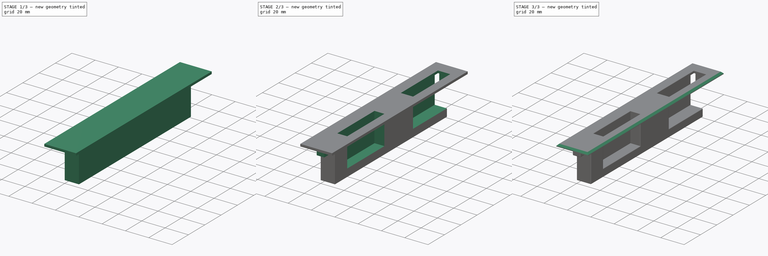
[diagram: build sequence overview — one tinted view per stage of 3, left to right]
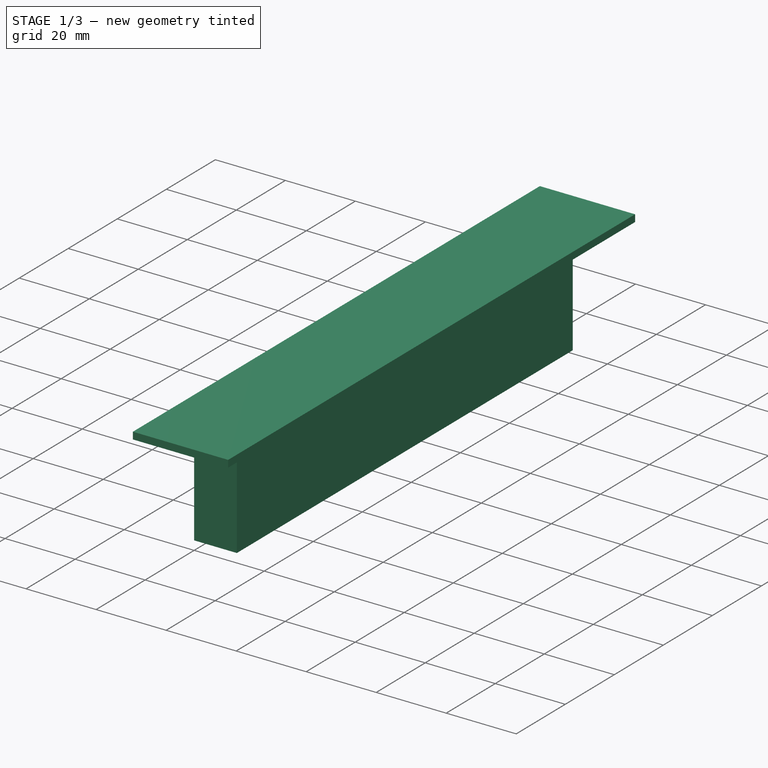
[diagram: stage 1 of 3 — iso view after this stage's code; geometry added in this stage tinted green]
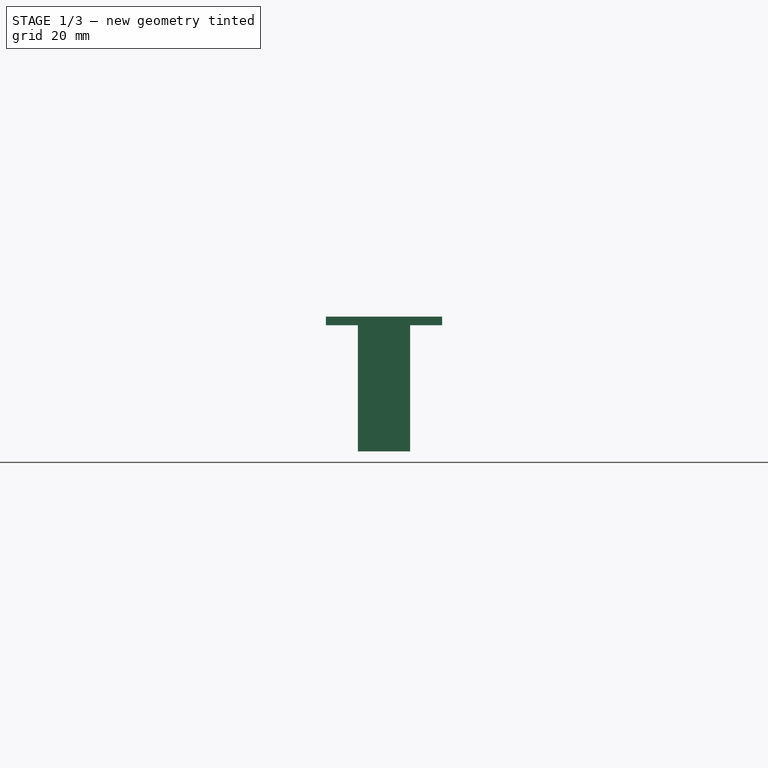
[diagram: stage 1 of 3 — front view after this stage's code; geometry added in this stage tinted green]
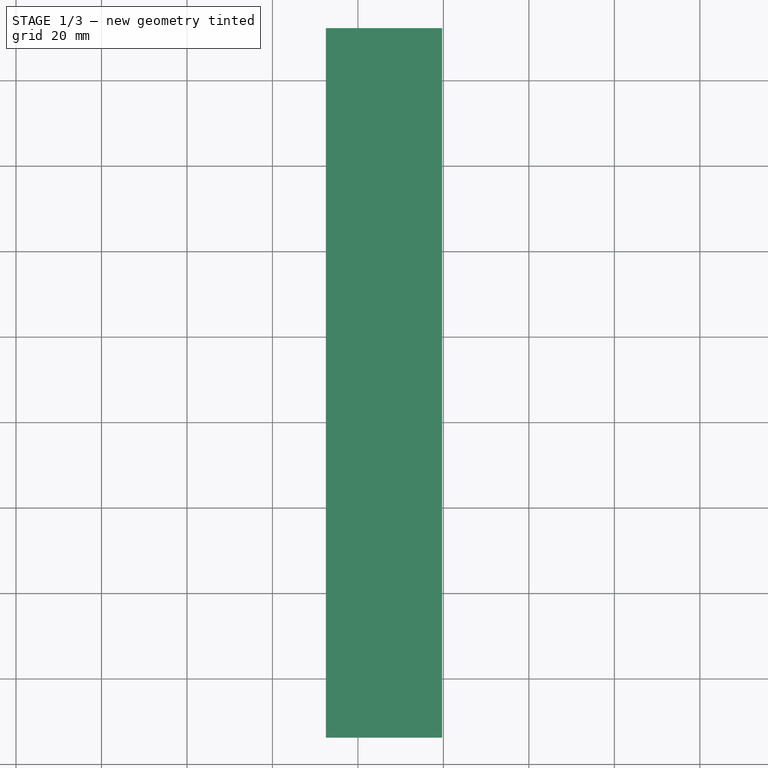
[diagram: stage 1 of 3 — top view after this stage's code; geometry added in this stage tinted green]
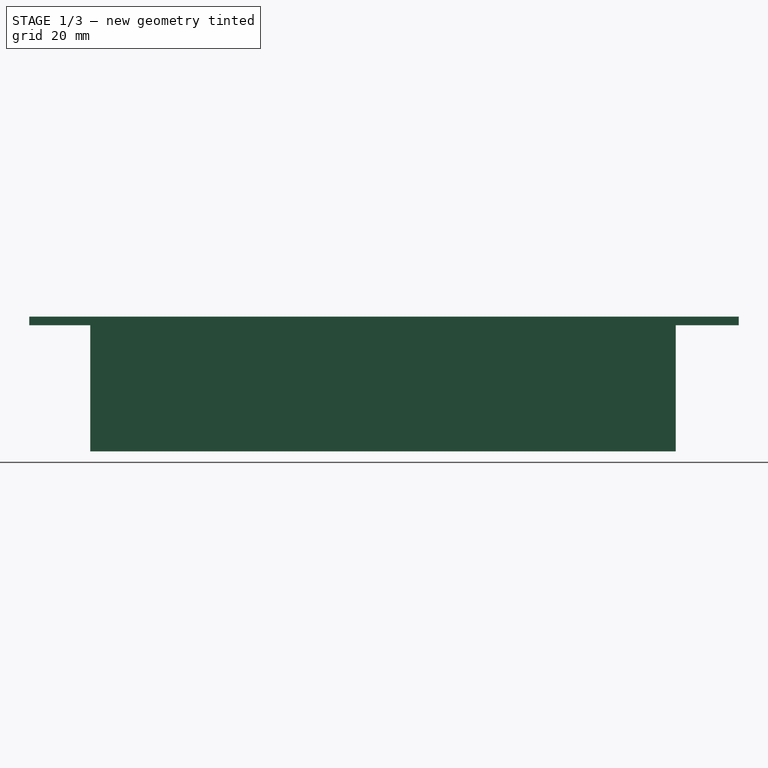
[diagram: stage 1 of 3 — right view after this stage's code; geometry added in this stage tinted green]
FCSTD DOCUMENT  (FreeCAD 1.0R39109 (Git))
Label: awning_door
License: All rights reserved
LicenseURL: https://en.wikipedia.org/wiki/All_rights_reserved
objects: Sketcher::SketchObject×4, PartDesign::Pad×3, Spreadsheet::Sheet×1, PartDesign::Pocket×1, PartDesign::Chamfer×1, PartDesign::Fillet×1, PartDesign::Body×1
note: 27 computed .brp shape members not serialized (recipe doc carries the construction recipe); baked Part::Feature solids carry a one-line shape summary decoded from their .brp

FEATURE [Sketcher::SketchObject] Sketch
  ArcFitTolerance = 0
  AttachmentSupport = -> [XY_Plane]
  FullyConstrained = true
  MakeInternals = false
  MapMode = 5
  expr: Constraints[10] = <<dimensions>>.height
  expr: Constraints[9] = <<dimensions>>.width
  sketch-geometry (4):
    g0: LineSegment StartX=0 StartY=0 StartZ=0 EndX=12.2 EndY=0 EndZ=0
    g1: LineSegment StartX=12.2 StartY=0 StartZ=0 EndX=12.2 EndY=137 EndZ=0
    g2: LineSegment StartX=12.2 StartY=137 StartZ=0 EndX=0 EndY=137 EndZ=0
    g3: LineSegment StartX=0 StartY=137 StartZ=0 EndX=0 EndY=0 EndZ=0
  constraints (11):
    c: Coincident(g0,g1)
    c: Coincident(g1,g2)
    c: Coincident(g2,g3)
    c: Coincident(g3,g0)
    c: Horizontal(g0)
    c: Horizontal(g2)
    c: Vertical(g1)
    c: Vertical(g3)
    c: Coincident(g0,g-1)
    c: DistanceX(g0,g0) = 12.2
    c: DistanceY(g1,g1) = 137
FEATURE [Spreadsheet::Sheet] Spreadsheet  label="dimensions"
  cells = A1='width; B1(width)==12.2 mm; A2='height; B2(height)==137 mm; A3='depth; B3(depth)==30 mm; A4='tolerance; B4(tolerance)==0.5 mm; A5='wall; B5(wall)==1.2 mm; A6='groove; B6(groove)==7 mm
FEATURE [PartDesign::Pad] Pad  label="hole"
  Direction = (0,0,1)
  Length = 29.5
  Length2 = 10
  Profile = -> Sketch
  ReferenceAxis = -> Sketch [N_Axis]
  Suppressed = false
  Type = 0
  expr: Length = <<dimensions>>.depth - <<dimensions>>.tolerance
FEATURE [Sketcher::SketchObject] Sketch001
  ArcFitTolerance = 0
  AttachmentOffset = pos=(0,0,31.5) rot=(0,0,1;0rad)
  AttachmentSupport = -> [XY_Plane]
  FullyConstrained = true
  MakeInternals = false
  MapMode = 5
  Placement = pos=(0,0,31.5) rot=(0,0,1;0rad)
  expr: .AttachmentOffset.Base.z = <<dimensions>>.depth - <<dimensions>>.tolerance + 2 mm
  expr: Constraints[19] = 30 mm + <<dimensions>>.tolerance + 15 mm
  expr: Constraints[20] = 12 mm + <<dimensions>>.tolerance - 2 mm
  expr: Constraints[23] = <<dimensions>>.width
  expr: Constraints[8] = 8 mm + <<dimensions>>.tolerance
  expr: Constraints[9] = 30 mm + <<dimensions>>.tolerance + 15 mm
  sketch-geometry (8):
    g0: LineSegment StartX=3.7 StartY=60.5 StartZ=0 EndX=12.2 EndY=60.5 EndZ=0
    g1: LineSegment StartX=12.2 StartY=60.5 StartZ=0 EndX=12.2 EndY=15 EndZ=0
    g2: LineSegment StartX=12.2 StartY=15 StartZ=0 EndX=3.7 EndY=15 EndZ=0
    g3: LineSegment StartX=3.7 StartY=15 StartZ=0 EndX=3.7 EndY=60.5 EndZ=0
    g4: LineSegment StartX=1.75 StartY=95.5 StartZ=0 EndX=12.25 EndY=95.5 EndZ=0
    g5: LineSegment StartX=12.25 StartY=95.5 StartZ=0 EndX=12.25 EndY=141 EndZ=0
    g6: LineSegment StartX=12.25 StartY=141 StartZ=0 EndX=1.75 EndY=141 EndZ=0
    g7: LineSegment StartX=1.75 StartY=141 StartZ=0 EndX=1.75 EndY=95.5 EndZ=0
  constraints (24):
    c: Coincident(g0,g1)
    c: Coincident(g1,g2)
    c: Coincident(g2,g3)
    c: Coincident(g3,g0)
    c: Horizontal(g0)
    c: Horizontal(g2)
    c: Vertical(g1)
    c: Vertical(g3)
    c: DistanceX(g2,g2) = 8.5
    c: DistanceY(g1,g1) = 45.5
    c: DistanceY(g-1,g2) = 15
    c: Coincident(g4,g5)
    c: Coincident(g5,g6)
    c: Coincident(g6,g7)
    c: Coincident(g7,g4)
    c: Horizontal(g4)
    c: Horizontal(g6)
    c: Vertical(g5)
    c: Vertical(g7)
    c: DistanceY(g5,g5) = 45.5
    c: DistanceX(g4,g4) = 10.5
    c: DistanceY(g0,g4) = 35
    c: DistanceX(g-1,g4) = 1.75
    c: DistanceX(g-1,g1) = 12.2
FEATURE [Sketcher::SketchObject] Sketch002
  ArcFitTolerance = 0
  AttachmentOffset = pos=(0,0,29.5) rot=(0,0,1;0rad)
  AttachmentSupport = -> [XY_Plane]
  FullyConstrained = true
  MakeInternals = false
  MapMode = 5
  Placement = pos=(0,0,29.5) rot=(0,0,1;0rad)
  expr: .AttachmentOffset.Base.z = <<dimensions>>.depth - <<dimensions>>.tolerance
  expr: Constraints[8] = <<dimensions>>.height + 2 * 7.5 mm + 2 * <<dimensions>>.groove
  expr: Constraints[9] = <<dimensions>>.width + 2 * 7.5 mm
  sketch-geometry (4):
    g0: LineSegment StartX=-7.5 StartY=151.73 StartZ=0 EndX=19.7 EndY=151.73 EndZ=0
    g1: LineSegment StartX=19.7 StartY=151.73 StartZ=0 EndX=19.7 EndY=-14.27 EndZ=0
    g2: LineSegment StartX=19.7 StartY=-14.27 StartZ=0 EndX=-7.5 EndY=-14.27 EndZ=0
    g3: LineSegment StartX=-7.5 StartY=-14.27 StartZ=0 EndX=-7.5 EndY=151.73 EndZ=0
  constraints (12):
    c: Coincident(g0,g1)
    c: Coincident(g1,g2)
    c: Coincident(g2,g3)
    c: Coincident(g3,g0)
    c: Horizontal(g0)
    c: Horizontal(g2)
    c: Vertical(g1)
    c: Vertical(g3)
    c: DistanceY(g1,g1) = 166
    c: DistanceX(g2,g2) = 27.2
    c: DistanceX(g2,g-1) = 7.5
    c: DistanceY(g2,g-1) = 14.27
FEATURE [PartDesign::Pad] Pad001  label="plate"
  BaseFeature = -> Pad
  Direction = (0,0,1)
  Length = 2
  Length2 = 10
  Profile = -> Sketch002
  ReferenceAxis = -> Sketch002 [N_Axis]
  Suppressed = false
  Type = 0
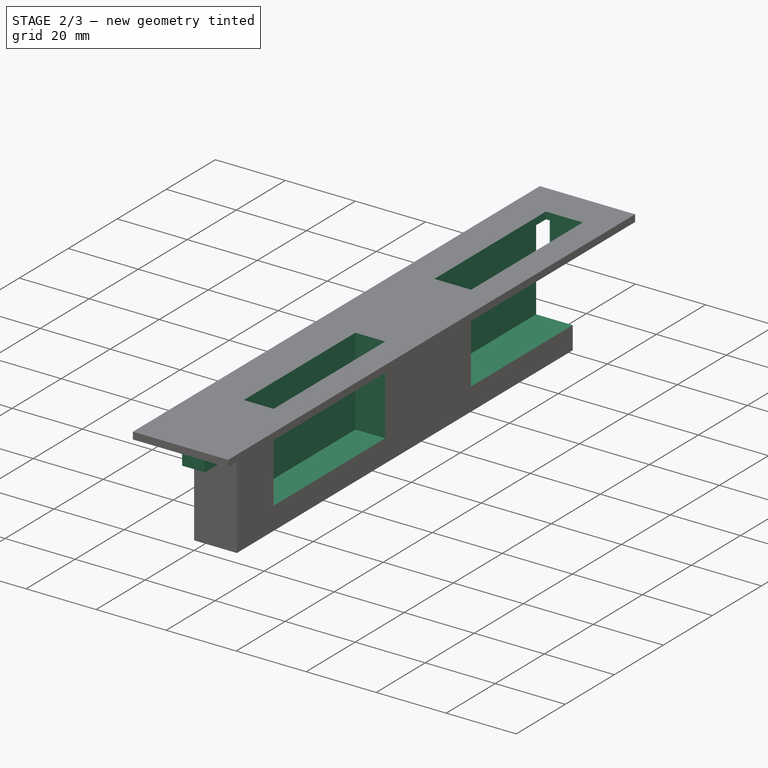
[diagram: stage 2 of 3 — iso view after this stage's code; geometry added in this stage tinted green]
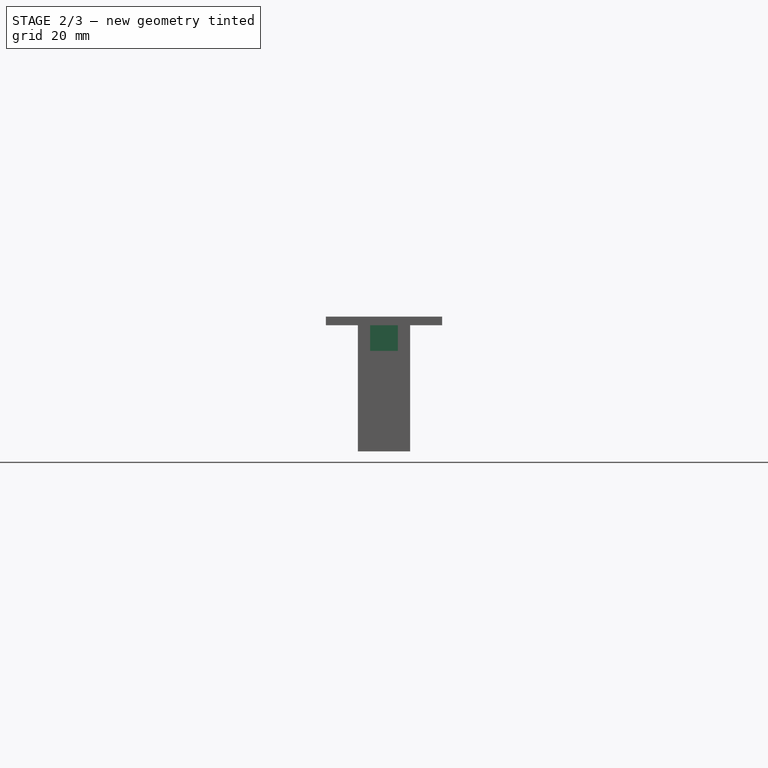
[diagram: stage 2 of 3 — front view after this stage's code; geometry added in this stage tinted green]
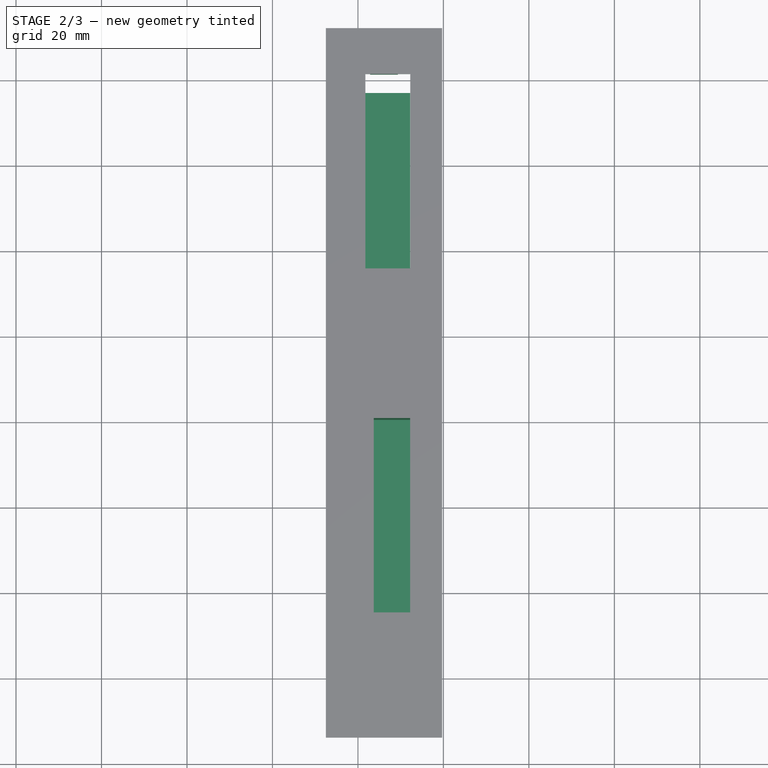
[diagram: stage 2 of 3 — top view after this stage's code; geometry added in this stage tinted green]
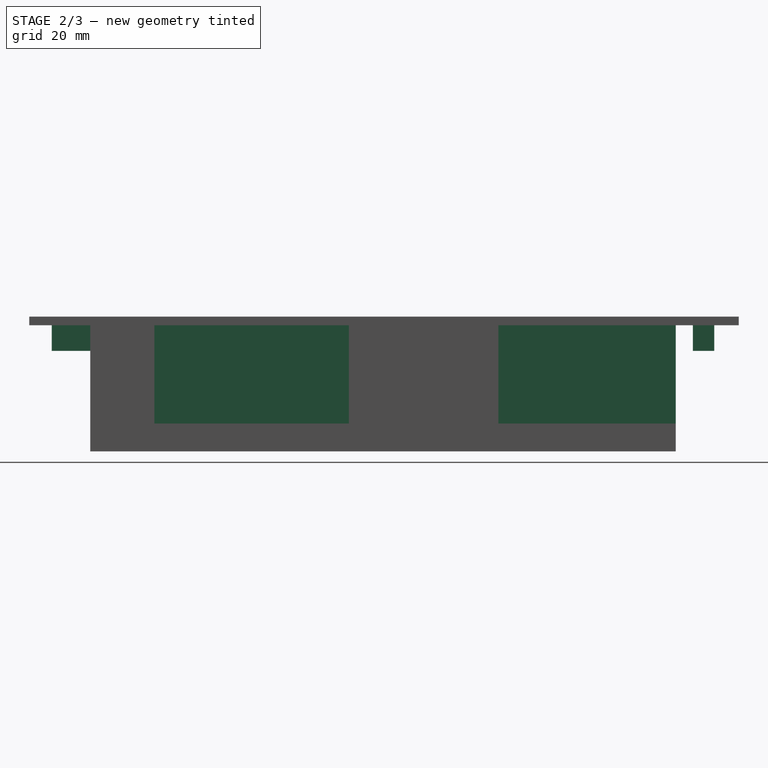
[diagram: stage 2 of 3 — right view after this stage's code; geometry added in this stage tinted green]
FEATURE [Sketcher::SketchObject] Sketch003
  ArcFitTolerance = 0
  AttachmentOffset = pos=(0,0,29.5) rot=(0,0,1;0rad)
  AttachmentSupport = -> [XY_Plane]
  FullyConstrained = true
  MakeInternals = false
  MapMode = 5
  Placement = pos=(0,0,29.5) rot=(0,0,1;0rad)
  expr: .AttachmentOffset.Base.z = <<dimensions>>.depth - <<dimensions>>.tolerance
  expr: Constraints[11] = (<<dimensions>>.width - 6.5 mm) / 2
  expr: Constraints[22] = (<<dimensions>>.width - 6.5 mm) / 2
  expr: Constraints[23] = <<dimensions>>.height
  sketch-geometry (8):
    g0: LineSegment StartX=2.85 StartY=0 StartZ=0 EndX=9.35 EndY=0 EndZ=0
    g1: LineSegment StartX=9.35 StartY=0 StartZ=0 EndX=9.35 EndY=-9 EndZ=0
    g2: LineSegment StartX=9.35 StartY=-9 StartZ=0 EndX=2.85 EndY=-9 EndZ=0
    g3: LineSegment StartX=2.85 StartY=-9 StartZ=0 EndX=2.85 EndY=0 EndZ=0
    g4: LineSegment StartX=2.85 StartY=146 StartZ=0 EndX=9.35 EndY=146 EndZ=0
    g5: LineSegment StartX=9.35 StartY=146 StartZ=0 EndX=9.35 EndY=137 EndZ=0
    g6: LineSegment StartX=9.35 StartY=137 StartZ=0 EndX=2.85 EndY=137 EndZ=0
    g7: LineSegment StartX=2.85 StartY=137 StartZ=0 EndX=2.85 EndY=146 EndZ=0
  constraints (24):
    c: Coincident(g0,g1)
    c: Coincident(g1,g2)
    c: Coincident(g2,g3)
    c: Coincident(g3,g0)
    c: Horizontal(g0)
    c: Horizontal(g2)
    c: Vertical(g1)
    c: Vertical(g3)
    c: PointOnObject(g0,g-1)
    c: DistanceX(g2,g2) = 6.5
    c: DistanceY(g1,g1) = 9
    c: DistanceX(g-1,g2) = 2.85
    c: Coincident(g4,g5)
    c: Coincident(g5,g6)
    c: Coincident(g6,g7)
    c: Coincident(g7,g4)
    c: Horizontal(g4)
    c: Horizontal(g6)
    c: Vertical(g5)
    c: Vertical(g7)
    c: Equal(g5,g1)
    c: Equal(g6,g0)
    c: DistanceX(g-1,g6) = 2.85
    c: DistanceY(g-1,g6) = 137
FEATURE [PartDesign::Pad] Pad002  label="groove"
  BaseFeature = -> Pad001
  Direction = (0,0,1)
  Length = 6
  Length2 = 10
  Profile = -> Sketch003
  ReferenceAxis = -> Sketch003 [N_Axis]
  Reversed = true
  Suppressed = false
  Type = 0
FEATURE [PartDesign::Pocket] Pocket  label="lock"
  BaseFeature = -> Pad002
  Direction = (0,0,-1)
  Length = 25
  Length2 = 5
  Profile = -> Sketch001
  ReferenceAxis = -> Sketch001 [N_Axis]
  Suppressed = false
  Type = 0
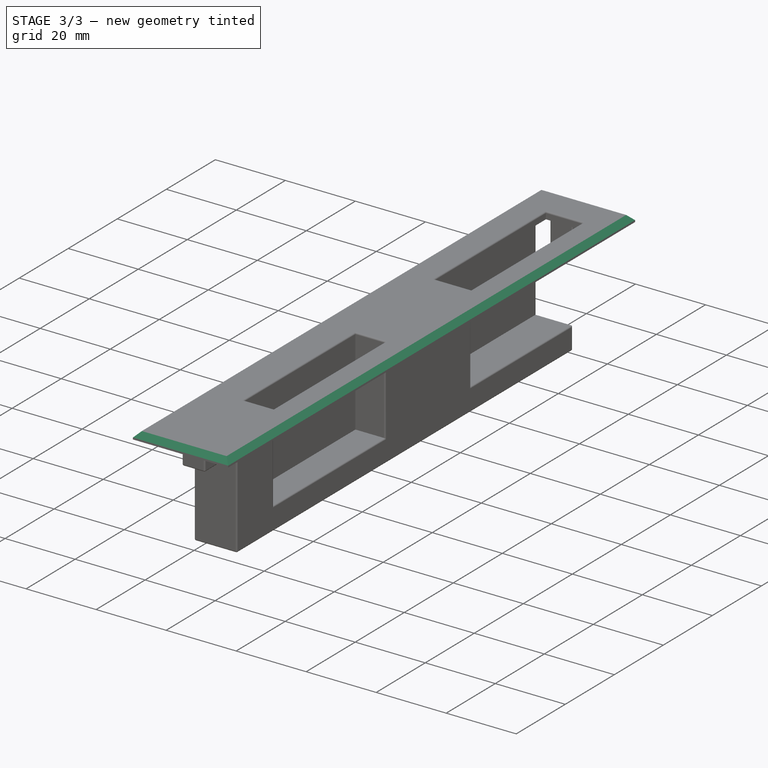
[diagram: stage 3 of 3 — iso view after this stage's code; geometry added in this stage tinted green]
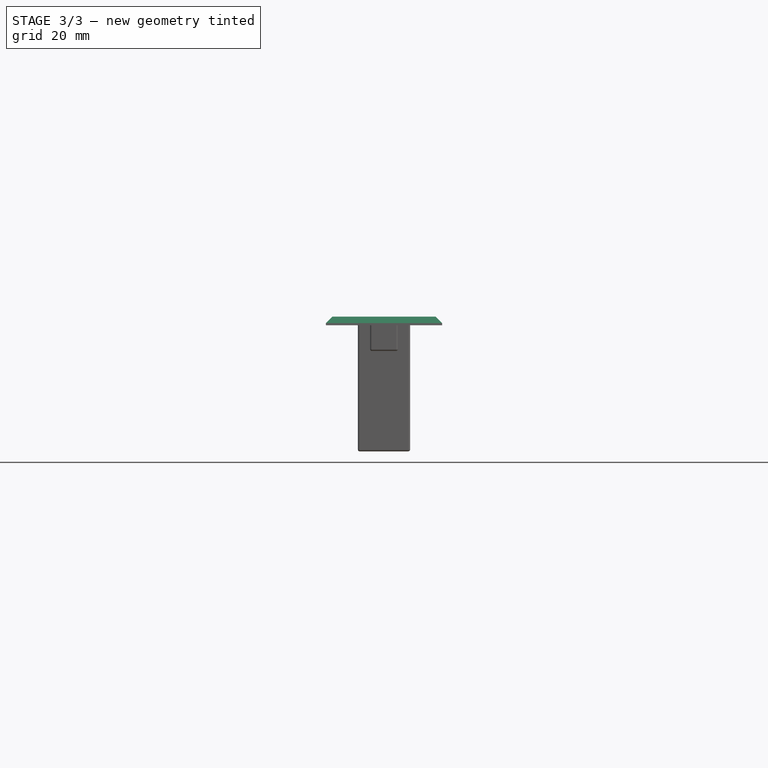
[diagram: stage 3 of 3 — front view after this stage's code; geometry added in this stage tinted green]
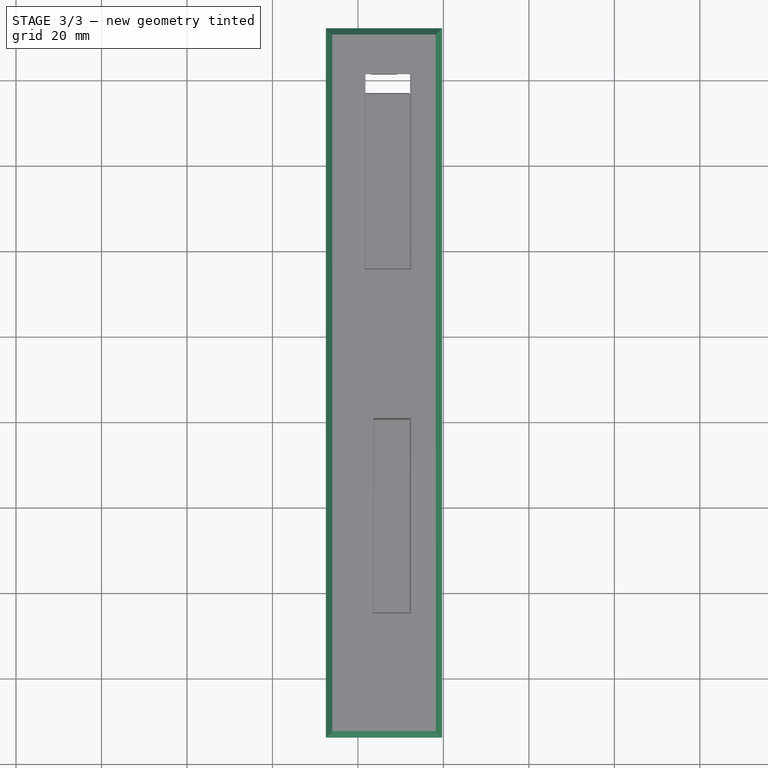
[diagram: stage 3 of 3 — top view after this stage's code; geometry added in this stage tinted green]
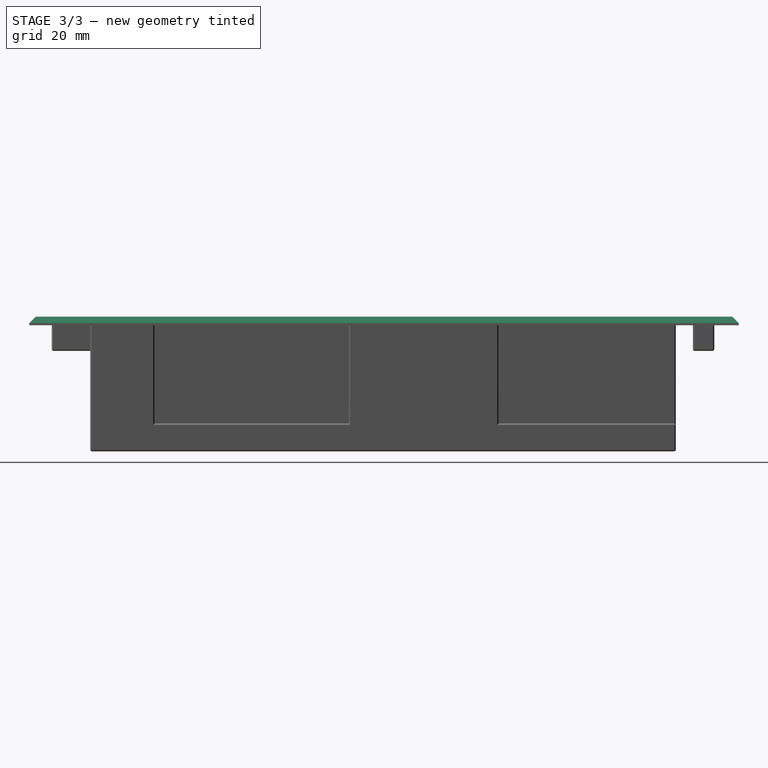
[diagram: stage 3 of 3 — right view after this stage's code; geometry added in this stage tinted green]
FEATURE [PartDesign::Chamfer] Chamfer
  Angle = 45
  Base = -> Pocket [Edge62,Edge64,Edge66,Edge67]
  BaseFeature = -> Pocket
  ChamferType = 0
  FlipDirection = false
  Refine = true
  Size = 1.5
  Size2 = 1
  SupportTransform = false
  Suppressed = false
  UseAllEdges = false
FEATURE [PartDesign::Fillet] Fillet
  Base = -> Chamfer [Edge38,Edge41,Edge40,Edge39,Edge43,Edge42,Edge45,Edge44,Edge58,Edge85,Edge82,Edge47,Edge59,Edge83,Edge52,Edge48,Edge57,Edge56,Edge54,Edge53,Edge55,Edge64,Edge63,Edge62,Edge61,Edge60,Edge84,Edge77,Edge76,Edge75,Edge78,Edge79,Edge73,Edge74,Edge72,Edge81]
  BaseFeature = -> Chamfer
  Radius = 0.4
  Refine = true
  SupportTransform = false
  Suppressed = false
  UseAllEdges = false
FEATURE [PartDesign::Body] Body  label="Körper"
  AllowCompound = false
  Group = -> [Sketch,Pad,Sketch002,Pad001,Pad002,Sketch001,Pocket,Sketch003,Chamfer,Fillet]
  Origin = -> Origin
  Tip = -> Fillet
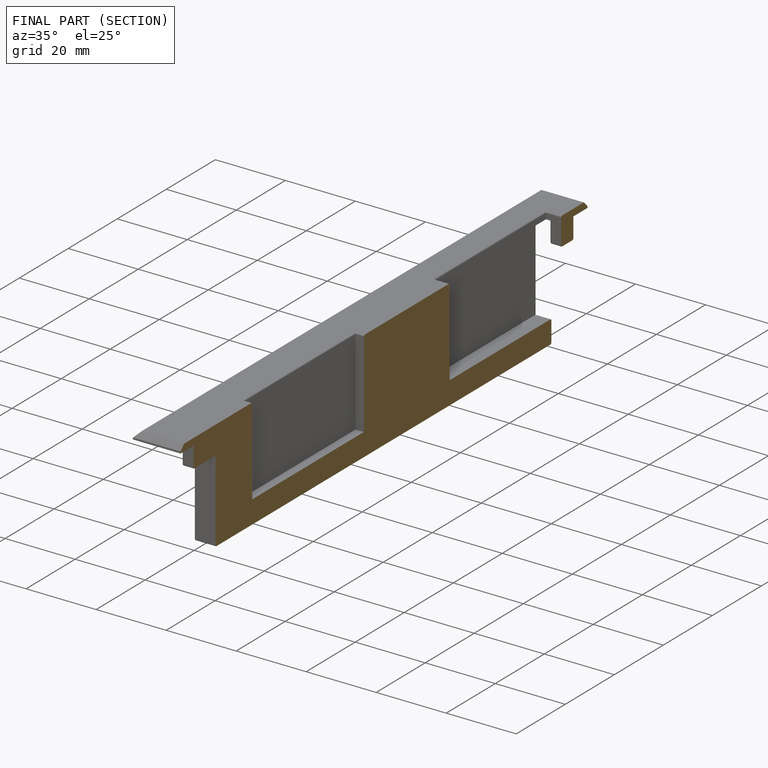
[diagram: finished part — half-section view (interior)]
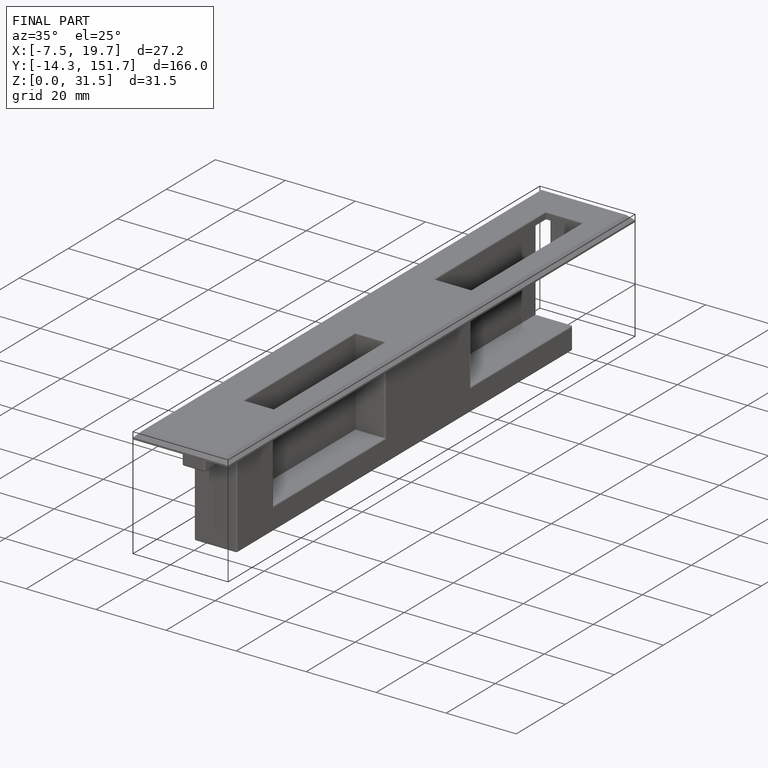
[diagram: finished part — iso view with bounding-box wireframe]
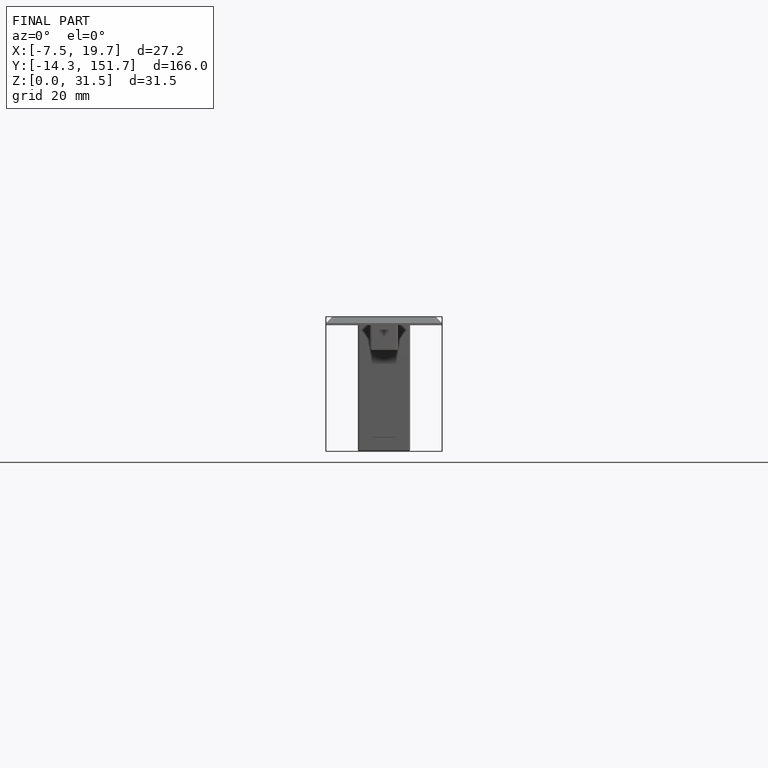
[diagram: finished part — front view with bounding-box wireframe]
